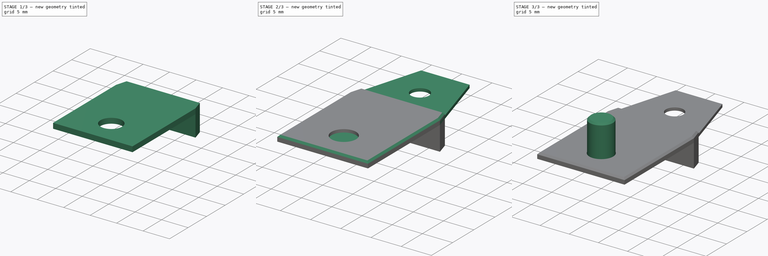
[diagram: build sequence overview — one tinted view per stage of 3, left to right]
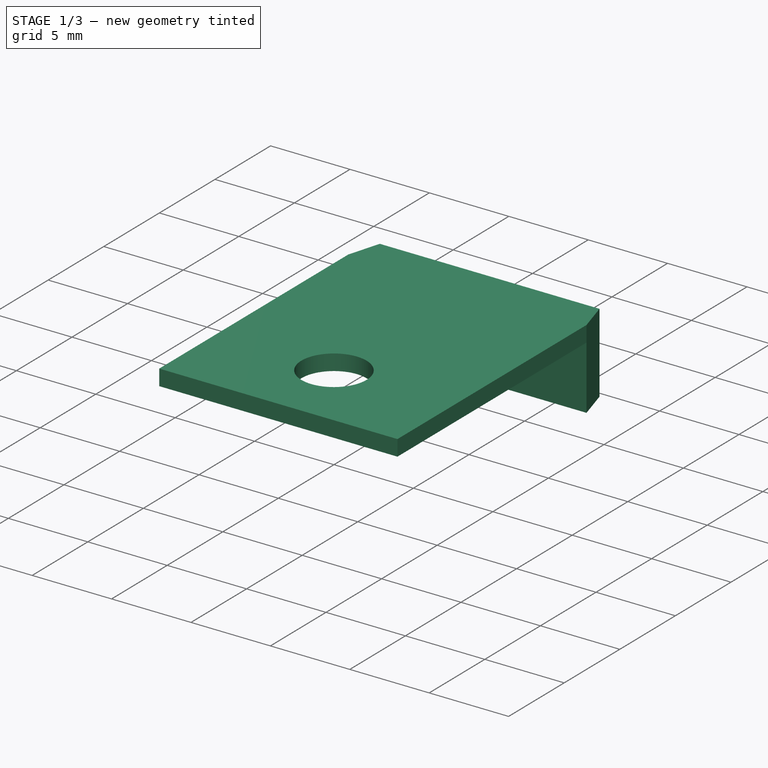
[diagram: stage 1 of 3 — iso view after this stage's code; geometry added in this stage tinted green]
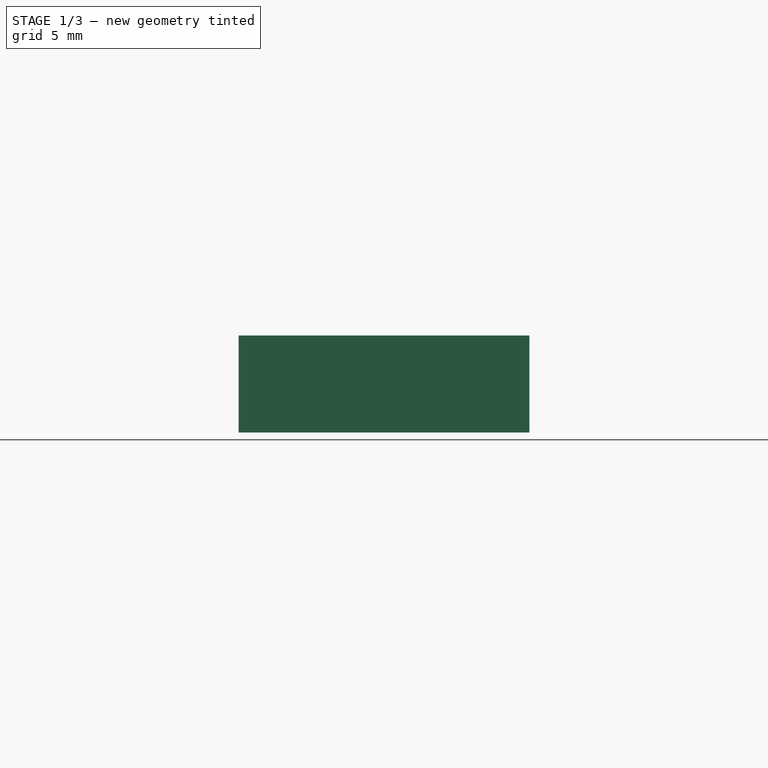
[diagram: stage 1 of 3 — front view after this stage's code; geometry added in this stage tinted green]
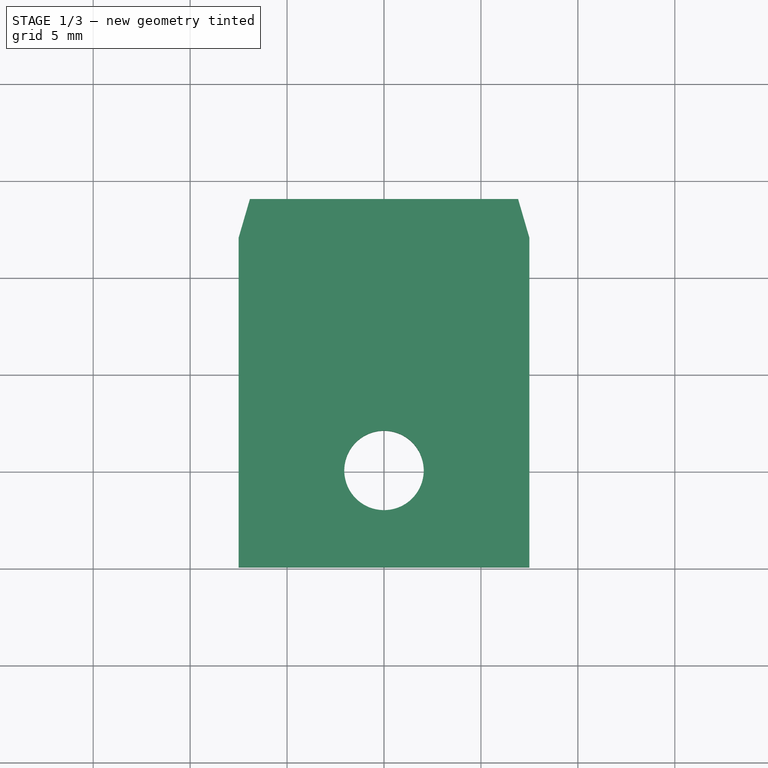
[diagram: stage 1 of 3 — top view after this stage's code; geometry added in this stage tinted green]
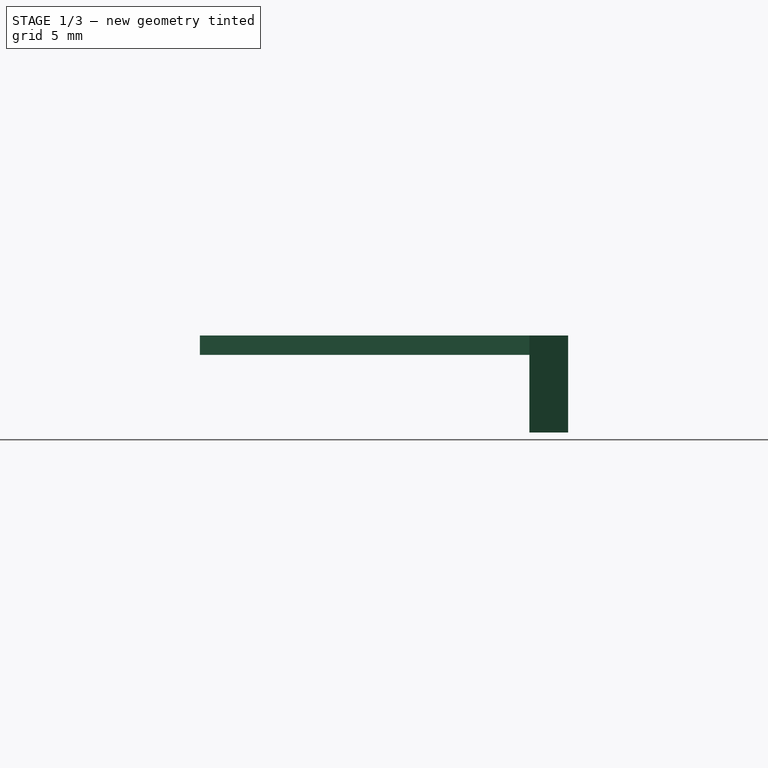
[diagram: stage 1 of 3 — right view after this stage's code; geometry added in this stage tinted green]
FCSTD DOCUMENT  (FreeCAD 0.19R22670 (Git))
Label: picture clip
License: All rights reserved
LicenseURL: http://en.wikipedia.org/wiki/All_rights_reserved
objects: Sketcher::SketchObject×5, PartDesign::Pad×4, PartDesign::Chamfer×3, PartDesign::Body×2
note: 21 computed .brp shape members not serialized (recipe doc carries the construction recipe); baked Part::Feature solids carry a one-line shape summary decoded from their .brp

FEATURE [PartDesign::Body] Body  label="back"
  Group = -> [Sketch001,Pad,Sketch002,Pad001,Chamfer]
  Origin = -> Origin
  Tip = -> Chamfer
FEATURE [PartDesign::Pad] Pad002
  Direction = (1,1,1)
  Length = 1
  Length2 = 100
  Profile = -> Sketch003
  Refine = true
  Type = 0
FEATURE [Sketcher::SketchObject] Sketch004
  ExternalGeometry = -> [Pad002]
  MapMode = 5
  Placement = pos=(0,0,1) rot=(0,0,1;0rad)
  Support = -> [Pad002]
  expr: Constraints[9] = Sketch.Constraints[9]
  expr: Constraints[22] = Sketch.Constraints[22]
  expr: Constraints[10] = Sketch.Constraints[10]
  expr: Constraints[23] = Sketch.Constraints[23]
  expr: Constraints[24] = Sketch.Constraints[24]
  expr: Constraints[25] = Sketch.Constraints[25]
  expr: Constraints[26] = Sketch.Constraints[26]
  sketch-geometry (14):
    g0: LineSegment [constr] StartX=-7.5 StartY=-5 StartZ=0 EndX=7.5 EndY=-5 EndZ=0
    g1: LineSegment [constr] StartX=7.5 StartY=-5 StartZ=0 EndX=7.5 EndY=12 EndZ=0
    g2: LineSegment [constr] StartX=-7.5 StartY=12 StartZ=0 EndX=-7.5 EndY=-5 EndZ=0
    g3: LineSegment [constr] StartX=-7.5 StartY=12 StartZ=0 EndX=-4 EndY=24 EndZ=0
    g4: LineSegment [constr] StartX=-4 StartY=24 StartZ=0 EndX=4 EndY=24 EndZ=0
    g5: LineSegment [constr] StartX=4 StartY=24 StartZ=0 EndX=7.5 EndY=12 EndZ=0
    g6: Circle [constr] CenterX=0 CenterY=0 CenterZ=0 NormalX=0 NormalY=0 NormalZ=1 AngleXU=0 Radius=2
    g7: Circle [constr] CenterX=0 CenterY=18 CenterZ=0 NormalX=0 NormalY=0 NormalZ=1 AngleXU=0 Radius=1.5
    g8: LineSegment [constr] StartX=7.5 StartY=12 StartZ=0 EndX=7.5 EndY=18 EndZ=0
    g9: LineSegment [constr] StartX=7.5 StartY=18 StartZ=0 EndX=7.5 EndY=24 EndZ=0
    g10: LineSegment StartX=-6.91667 StartY=14 StartZ=0 EndX=6.91667 EndY=14 EndZ=0
    g11: LineSegment StartX=6.91667 StartY=14 StartZ=0 EndX=7.5 EndY=12 EndZ=0
    g12: LineSegment StartX=7.5 StartY=12 StartZ=0 EndX=-7.5 EndY=12 EndZ=0
    g13: LineSegment StartX=-7.5 StartY=12 StartZ=0 EndX=-6.91667 EndY=14 EndZ=0
  constraints (37):
    c: Coincident(g0,g1)
    c: Coincident(g2,g0)
    c: Vertical(g2)
    c: Coincident(g3,g2)
    c: Coincident(g4,g3)
    c: Horizontal(g4)
    c: Coincident(g5,g4)
    c: Coincident(g5,g1)
    c: Coincident(g6,g-1)
    c: Diameter(g6) = 4
    c: DistanceX(g0,g0) = 15
    c: Symmetric(g0,g0,g-2)
    c: Equal(g2,g1)
    c: Equal(g3,g5)
    c: PointOnObject(g7,g-2)
    c: Coincident(g8,g1)
    c: Vertical(g8)
    c: Coincident(g9,g8)
    c: Vertical(g9)
    c: Horizontal(g9,g4)
    c: Horizontal(g7,g8)
    c: Equal(g8,g9)
    c: DistanceY(g1,g4) = 12
    c: DistanceX(g4,g4) = 8
    c: Diameter(g7) = 3
    c: DistanceY(g6,g1) = 12
    c: DistanceY(g0,g6) = 5
    c: Vertical(g1)
    c: Coincident(g-3,g10)
    c: Coincident(g10,g-3)
    c: Coincident(g10,g11)
    c: Coincident(g11,g12)
    c: PointOnObject(g12,g3)
    c: Horizontal(g12)
    c: Coincident(g12,g13)
    c: Coincident(g13,g10)
    c: Coincident(g11,g1)
FEATURE [PartDesign::Pad] Pad003
  BaseFeature = -> Pad002
  Direction = (1,1,1)
  Length = 5
  Length2 = 100
  Profile = -> Sketch004
  Refine = true
  Reversed = true
  Type = 0
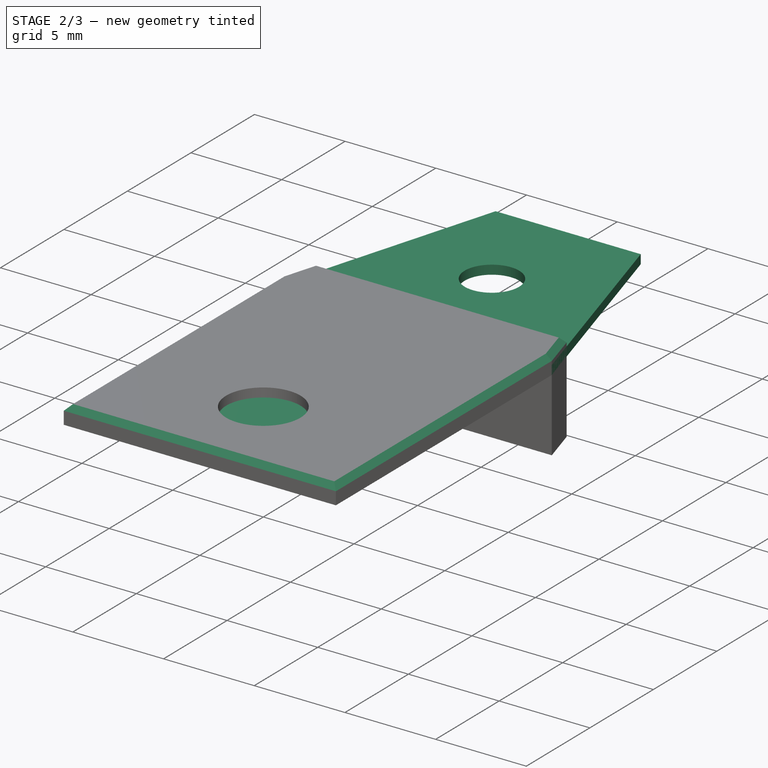
[diagram: stage 2 of 3 — iso view after this stage's code; geometry added in this stage tinted green]
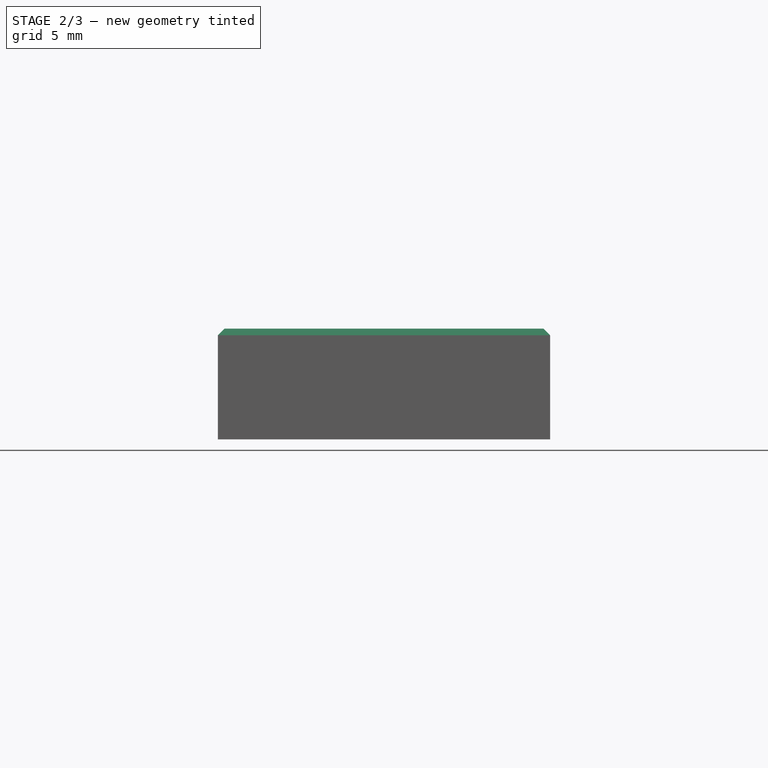
[diagram: stage 2 of 3 — front view after this stage's code; geometry added in this stage tinted green]
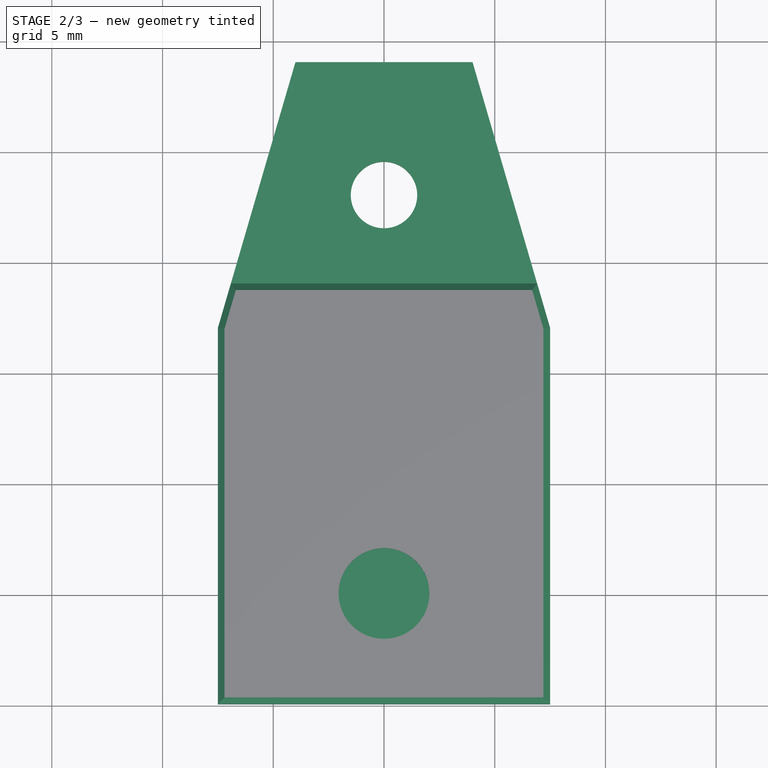
[diagram: stage 2 of 3 — top view after this stage's code; geometry added in this stage tinted green]
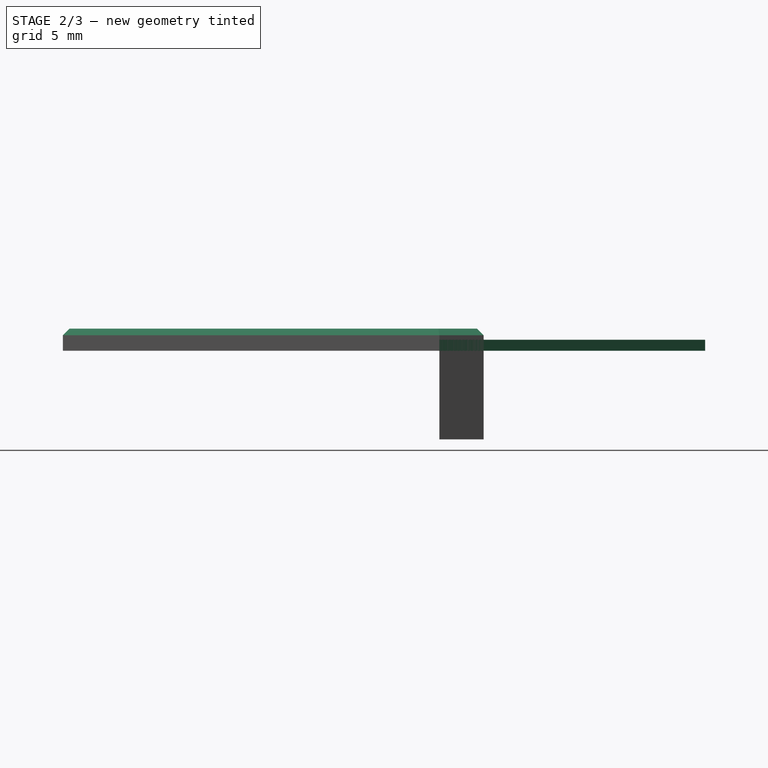
[diagram: stage 2 of 3 — right view after this stage's code; geometry added in this stage tinted green]
FEATURE [Sketcher::SketchObject] Sketch  label="Master"
  MapMode = 5
  Support = -> [XY_Plane]
  sketch-geometry (10):
    g0: LineSegment StartX=-7.5 StartY=-5 StartZ=0 EndX=7.5 EndY=-5 EndZ=0
    g1: LineSegment StartX=7.5 StartY=-5 StartZ=0 EndX=7.5 EndY=12 EndZ=0
    g2: LineSegment StartX=-7.5 StartY=12 StartZ=0 EndX=-7.5 EndY=-5 EndZ=0
    g3: LineSegment StartX=-7.5 StartY=12 StartZ=0 EndX=-4 EndY=24 EndZ=0
    g4: LineSegment StartX=-4 StartY=24 StartZ=0 EndX=4 EndY=24 EndZ=0
    g5: LineSegment StartX=4 StartY=24 StartZ=0 EndX=7.5 EndY=12 EndZ=0
    g6: Circle CenterX=0 CenterY=0 CenterZ=0 NormalX=0 NormalY=0 NormalZ=1 AngleXU=0 Radius=2
    g7: Circle CenterX=0 CenterY=18 CenterZ=0 NormalX=0 NormalY=0 NormalZ=1 AngleXU=0 Radius=1.5
    g8: LineSegment [constr] StartX=7.5 StartY=12 StartZ=0 EndX=7.5 EndY=18 EndZ=0
    g9: LineSegment [constr] StartX=7.5 StartY=18 StartZ=0 EndX=7.5 EndY=24 EndZ=0
  constraints (28):
    c: Coincident(g0,g1)
    c: Coincident(g2,g0)
    c: Vertical(g2)
    c: Coincident(g3,g2)
    c: Coincident(g4,g3)
    c: Horizontal(g4)
    c: Coincident(g5,g4)
    c: Coincident(g5,g1)
    c: Coincident(g6,g-1)
    c: Diameter(g6) = 4
    c: DistanceX(g0,g0) = 15
    c: Symmetric(g0,g0,g-2)
    c: Equal(g2,g1)
    c: Equal(g3,g5)
    c: PointOnObject(g7,g-2)
    c: Coincident(g8,g1)
    c: Vertical(g8)
    c: Coincident(g9,g8)
    c: Vertical(g9)
    c: Horizontal(g9,g4)
    c: Horizontal(g7,g8)
    c: Equal(g8,g9)
    c: DistanceY(g1,g4) = 12
    c: DistanceX(g4,g4) = 8
    c: Diameter(g7) = 3
    c: DistanceY(g6,g1) = 12
    c: DistanceY(g0,g6) = 5
    c: Vertical(g1)
FEATURE [Sketcher::SketchObject] Sketch001
  MapMode = 5
  Support = -> [XY_Plane]
  expr: Constraints[20] = Sketch.Constraints[22]
  expr: Constraints[8] = Sketch.Constraints[10]
  expr: Constraints[21] = Sketch.Constraints[23]
  expr: Constraints[22] = Sketch.Constraints[24]
  sketch-geometry (9):
    g0: LineSegment StartX=-7.5 StartY=-5 StartZ=0 EndX=7.5 EndY=-5 EndZ=0
    g1: LineSegment StartX=7.5 StartY=-5 StartZ=0 EndX=7.5 EndY=12 EndZ=0
    g2: LineSegment StartX=-7.5 StartY=12 StartZ=0 EndX=-7.5 EndY=-5 EndZ=0
    g3: LineSegment StartX=-7.5 StartY=12 StartZ=0 EndX=-4 EndY=24 EndZ=0
    g4: LineSegment StartX=-4 StartY=24 StartZ=0 EndX=4 EndY=24 EndZ=0
    g5: LineSegment StartX=4 StartY=24 StartZ=0 EndX=7.5 EndY=12 EndZ=0
    g6: Circle CenterX=0 CenterY=18 CenterZ=0 NormalX=0 NormalY=0 NormalZ=1 AngleXU=0 Radius=1.5
    g7: LineSegment [constr] StartX=7.5 StartY=12 StartZ=0 EndX=7.5 EndY=18 EndZ=0
    g8: LineSegment [constr] StartX=7.5 StartY=18 StartZ=0 EndX=7.5 EndY=24 EndZ=0
  constraints (24):
    c: Coincident(g0,g1)
    c: Coincident(g2,g0)
    c: Vertical(g2)
    c: Coincident(g3,g2)
    c: Coincident(g4,g3)
    c: Horizontal(g4)
    c: Coincident(g5,g4)
    c: Coincident(g5,g1)
    c: DistanceX(g0,g0) = 15
    c: Symmetric(g0,g0,g-2)
    c: Equal(g2,g1)
    c: Equal(g3,g5)
    c: PointOnObject(g6,g-2)
    c: Coincident(g7,g1)
    c: Vertical(g7)
    c: Coincident(g8,g7)
    c: Vertical(g8)
    c: Horizontal(g8,g4)
    c: Horizontal(g6,g7)
    c: Equal(g7,g8)
    c: DistanceY(g1,g4) = 12
    c: DistanceX(g4,g4) = 8
    c: Diameter(g6) = 3
    c: Vertical(g1)
FEATURE [PartDesign::Pad] Pad
  Direction = (1,1,1)
  Length = 0.5
  Length2 = 100
  Profile = -> Sketch001
  Refine = true
  Type = 0
FEATURE [PartDesign::Chamfer] Chamfer001
  Angle = 45
  Base = -> Pad003 [Edge10]
  BaseFeature = -> Pad003
  ChamferType = 0
  FlipDirection = false
  Refine = true
  Size = 0.3
  Size2 = 1
  SupportTransform = false
FEATURE [PartDesign::Chamfer] Chamfer002
  Angle = 45
  Base = -> Chamfer001 [Edge13,Edge15,Edge17,Edge22,Edge27,Edge26]
  BaseFeature = -> Chamfer001
  ChamferType = 0
  FlipDirection = false
  Refine = true
  Size = 0.3
  Size2 = 1
  SupportTransform = false
FEATURE [PartDesign::Body] Body001  label="front"
  Group = -> [Sketch003,Pad002,Sketch004,Pad003,Chamfer001,Chamfer002]
  Origin = -> Origin001
  Placement = pos=(0,0,4.5) rot=(0,0,1;0rad)
  Tip = -> Chamfer002
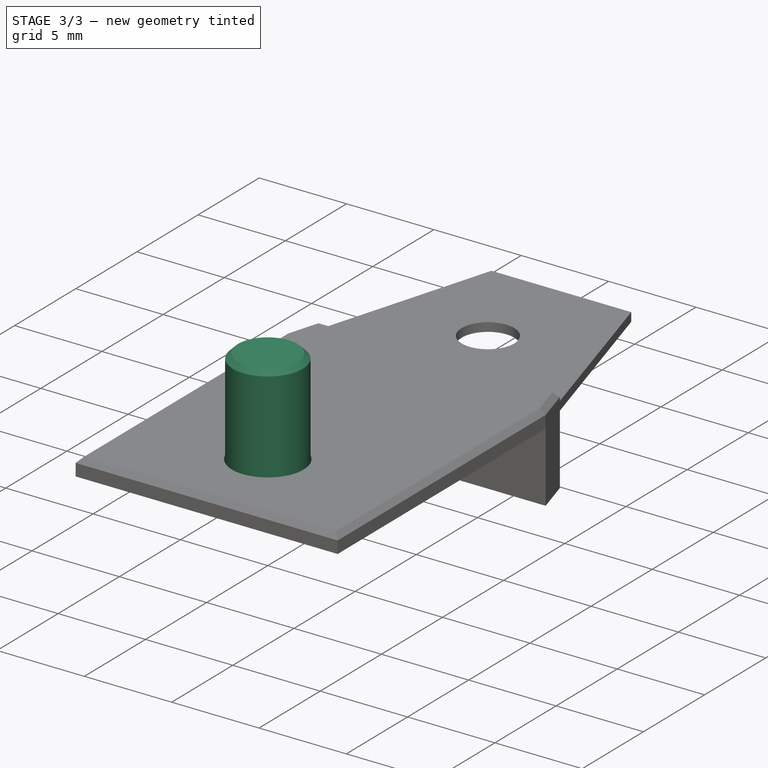
[diagram: stage 3 of 3 — iso view after this stage's code; geometry added in this stage tinted green]
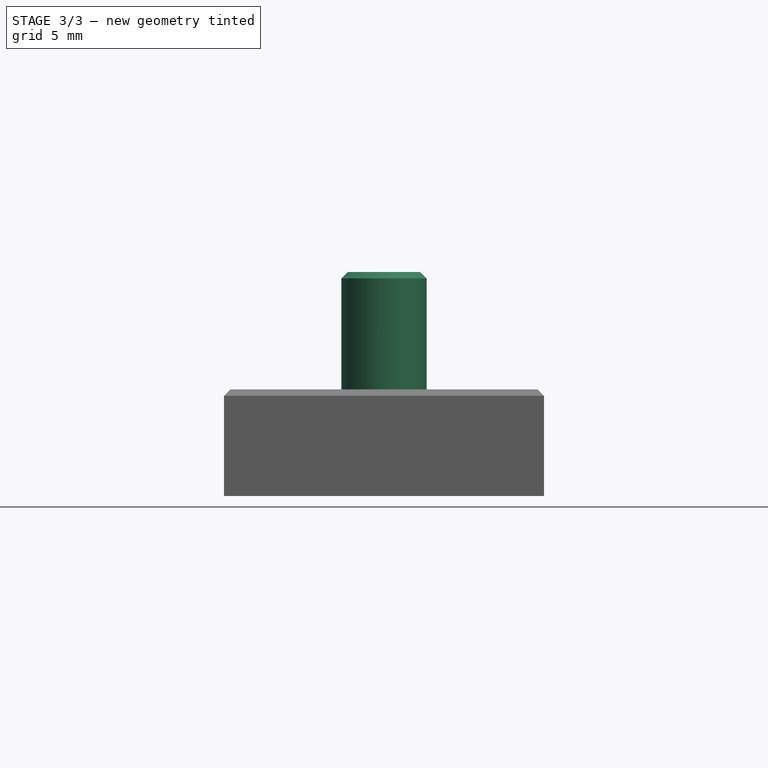
[diagram: stage 3 of 3 — front view after this stage's code; geometry added in this stage tinted green]
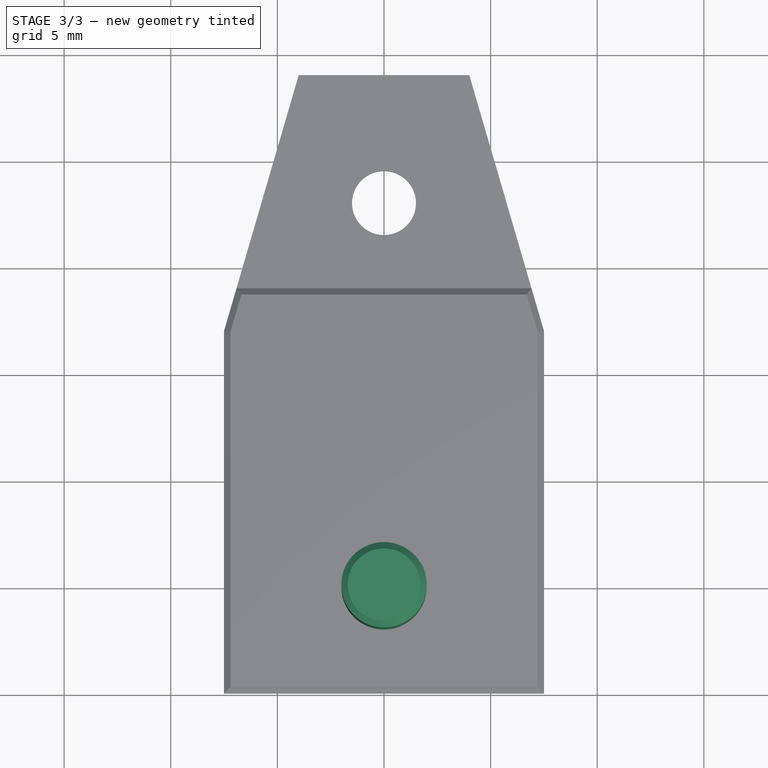
[diagram: stage 3 of 3 — top view after this stage's code; geometry added in this stage tinted green]
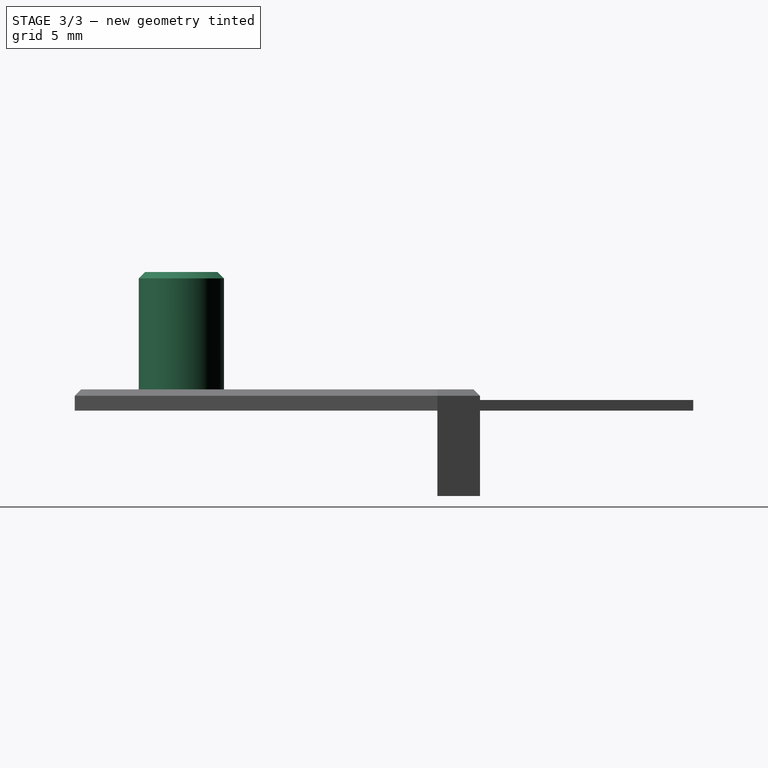
[diagram: stage 3 of 3 — right view after this stage's code; geometry added in this stage tinted green]
FEATURE [Sketcher::SketchObject] Sketch002
  MapMode = 5
  Placement = pos=(0,0,0.5) rot=(0,0,1;0rad)
  Support = -> [Pad]
  expr: Constraints[9] = Sketch.Constraints[9]
  expr: Constraints[22] = Sketch.Constraints[22]
  expr: Constraints[10] = Sketch.Constraints[10]
  expr: Constraints[23] = Sketch.Constraints[23]
  expr: Constraints[24] = Sketch.Constraints[24]
  expr: Constraints[25] = Sketch.Constraints[25]
  expr: Constraints[26] = Sketch.Constraints[26]
  sketch-geometry (10):
    g0: LineSegment [constr] StartX=-7.5 StartY=-5 StartZ=0 EndX=7.5 EndY=-5 EndZ=0
    g1: LineSegment [constr] StartX=7.5 StartY=-5 StartZ=0 EndX=7.5 EndY=12 EndZ=0
    g2: LineSegment [constr] StartX=-7.5 StartY=12 StartZ=0 EndX=-7.5 EndY=-5 EndZ=0
    g3: LineSegment [constr] StartX=-7.5 StartY=12 StartZ=0 EndX=-4 EndY=24 EndZ=0
    g4: LineSegment [constr] StartX=-4 StartY=24 StartZ=0 EndX=4 EndY=24 EndZ=0
    g5: LineSegment [constr] StartX=4 StartY=24 StartZ=0 EndX=7.5 EndY=12 EndZ=0
    g6: Circle CenterX=0 CenterY=0 CenterZ=0 NormalX=0 NormalY=0 NormalZ=1 AngleXU=0 Radius=2
    g7: Circle [constr] CenterX=0 CenterY=18 CenterZ=0 NormalX=0 NormalY=0 NormalZ=1 AngleXU=0 Radius=1.5
    g8: LineSegment [constr] StartX=7.5 StartY=12 StartZ=0 EndX=7.5 EndY=18 EndZ=0
    g9: LineSegment [constr] StartX=7.5 StartY=18 StartZ=0 EndX=7.5 EndY=24 EndZ=0
  constraints (28):
    c: Coincident(g0,g1)
    c: Coincident(g2,g0)
    c: Vertical(g2)
    c: Coincident(g3,g2)
    c: Coincident(g4,g3)
    c: Horizontal(g4)
    c: Coincident(g5,g4)
    c: Coincident(g5,g1)
    c: Coincident(g6,g-1)
    c: Diameter(g6) = 4
    c: DistanceX(g0,g0) = 15
    c: Symmetric(g0,g0,g-2)
    c: Equal(g2,g1)
    c: Equal(g3,g5)
    c: PointOnObject(g7,g-2)
    c: Coincident(g8,g1)
    c: Vertical(g8)
    c: Coincident(g9,g8)
    c: Vertical(g9)
    c: Horizontal(g9,g4)
    c: Horizontal(g7,g8)
    c: Equal(g8,g9)
    c: DistanceY(g1,g4) = 12
    c: DistanceX(g4,g4) = 8
    c: Diameter(g7) = 3
    c: DistanceY(g6,g1) = 12
    c: DistanceY(g0,g6) = 5
    c: Vertical(g1)
FEATURE [PartDesign::Pad] Pad001
  BaseFeature = -> Pad
  Direction = (1,1,1)
  Length = 6
  Length2 = 100
  Profile = -> Sketch002
  Refine = true
  Type = 0
FEATURE [Sketcher::SketchObject] Sketch003
  MapMode = 5
  Support = -> [XY_Plane001]
  expr: Constraints[9] = Sketch.Constraints[9]
  expr: Constraints[22] = Sketch.Constraints[22]
  expr: Constraints[10] = Sketch.Constraints[10]
  expr: Constraints[23] = Sketch.Constraints[23]
  expr: Constraints[24] = Sketch.Constraints[24]
  expr: Constraints[25] = Sketch.Constraints[25]
  expr: Constraints[26] = Sketch.Constraints[26]
  sketch-geometry (19):
    g0: LineSegment [constr] StartX=-7.5 StartY=-5 StartZ=0 EndX=7.5 EndY=-5 EndZ=0
    g1: LineSegment [constr] StartX=7.5 StartY=-5 StartZ=0 EndX=7.5 EndY=12 EndZ=0
    g2: LineSegment [constr] StartX=-7.5 StartY=12 StartZ=0 EndX=-7.5 EndY=-5 EndZ=0
    g3: LineSegment [constr] StartX=-7.5 StartY=12 StartZ=0 EndX=-4 EndY=24 EndZ=0
    g4: LineSegment [constr] StartX=-4 StartY=24 StartZ=0 EndX=4 EndY=24 EndZ=0
    g5: LineSegment [constr] StartX=4 StartY=24 StartZ=0 EndX=7.5 EndY=12 EndZ=0
    g6: Circle [constr] CenterX=0 CenterY=0 CenterZ=0 NormalX=0 NormalY=0 NormalZ=1 AngleXU=0 Radius=2
    g7: Circle [constr] CenterX=0 CenterY=18 CenterZ=0 NormalX=0 NormalY=0 NormalZ=1 AngleXU=0 Radius=1.5
    g8: LineSegment [constr] StartX=7.5 StartY=12 StartZ=0 EndX=7.5 EndY=18 EndZ=0
    g9: LineSegment [constr] StartX=7.5 StartY=18 StartZ=0 EndX=7.5 EndY=24 EndZ=0
    g10: Circle CenterX=0 CenterY=0 CenterZ=0 NormalX=0 NormalY=0 NormalZ=1 AngleXU=0 Radius=2.05
    g11: LineSegment [constr] StartX=2 StartY=0 StartZ=0 EndX=2.05 EndY=0 EndZ=0
    g12: LineSegment [constr] StartX=2.05 StartY=0 StartZ=0 EndX=4.05 EndY=0 EndZ=0
    g13: LineSegment StartX=-7.5 StartY=12 StartZ=0 EndX=-7.5 EndY=-5 EndZ=0
    g14: LineSegment StartX=-7.5 StartY=-5 StartZ=0 EndX=7.5 EndY=-5 EndZ=0
    g15: LineSegment StartX=7.5 StartY=-5 StartZ=0 EndX=7.5 EndY=12 EndZ=0
    g16: LineSegment StartX=7.5 StartY=12 StartZ=0 EndX=6.91667 EndY=14 EndZ=0
    g17: LineSegment StartX=6.91667 StartY=14 StartZ=0 EndX=-6.91667 EndY=14 EndZ=0
    g18: LineSegment StartX=-6.91667 StartY=14 StartZ=0 EndX=-7.5 EndY=12 EndZ=0
  constraints (52):
    c: Coincident(g0,g1)
    c: Coincident(g2,g0)
    c: Vertical(g2)
    c: Coincident(g3,g2)
    c: Coincident(g4,g3)
    c: Horizontal(g4)
    c: Coincident(g5,g4)
    c: Coincident(g5,g1)
    c: Coincident(g6,g-1)
    c: Diameter(g6) = 4
    c: DistanceX(g0,g0) = 15
    c: Symmetric(g0,g0,g-2)
    c: Equal(g2,g1)
    c: Equal(g3,g5)
    c: PointOnObject(g7,g-2)
    c: Coincident(g8,g1)
    c: Vertical(g8)
    c: Coincident(g9,g8)
    c: Vertical(g9)
    c: Horizontal(g9,g4)
    c: Horizontal(g7,g8)
    c: Equal(g8,g9)
    c: DistanceY(g1,g4) = 12
    c: DistanceX(g4,g4) = 8
    c: Diameter(g7) = 3
    c: DistanceY(g6,g1) = 12
    c: DistanceY(g0,g6) = 5
    c: Vertical(g1)
    c: Coincident(g10,g-1)
    c: PointOnObject(g11,g6)
    c: PointOnObject(g11,g10)
    c: PointOnObject(g11,g-1)
    c: Horizontal(g11)
    c: DistanceX(g11,g11) = 0.05
    c: PointOnObject(g12,g10)
    c: PointOnObject(g12,g-1)
    c: Horizontal(g12)
    c: DistanceX(g12,g12) = 2
    c: Coincident(g2,g13)
    c: Coincident(g13,g0)
    c: Coincident(g13,g14)
    c: Coincident(g14,g0)
    c: Coincident(g14,g15)
    c: Coincident(g15,g1)
    c: Coincident(g15,g16)
    c: PointOnObject(g16,g5)
    c: Coincident(g16,g17)
    c: PointOnObject(g17,g3)
    c: Horizontal(g17)
    c: Coincident(g17,g18)
    c: Coincident(g18,g13)
    c: DistanceY(g15,g16) = 2
FEATURE [PartDesign::Chamfer] Chamfer
  Angle = 45
  Base = -> Pad001 [Edge24]
  BaseFeature = -> Pad001
  ChamferType = 0
  FlipDirection = false
  Refine = true
  Size = 0.3
  Size2 = 1
  SupportTransform = false
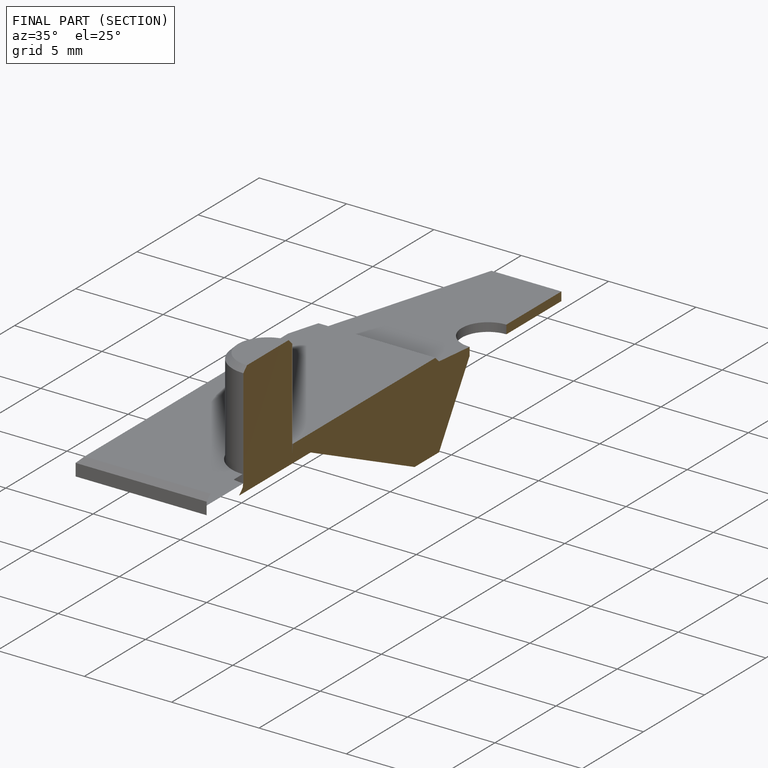
[diagram: finished part — half-section view (interior)]
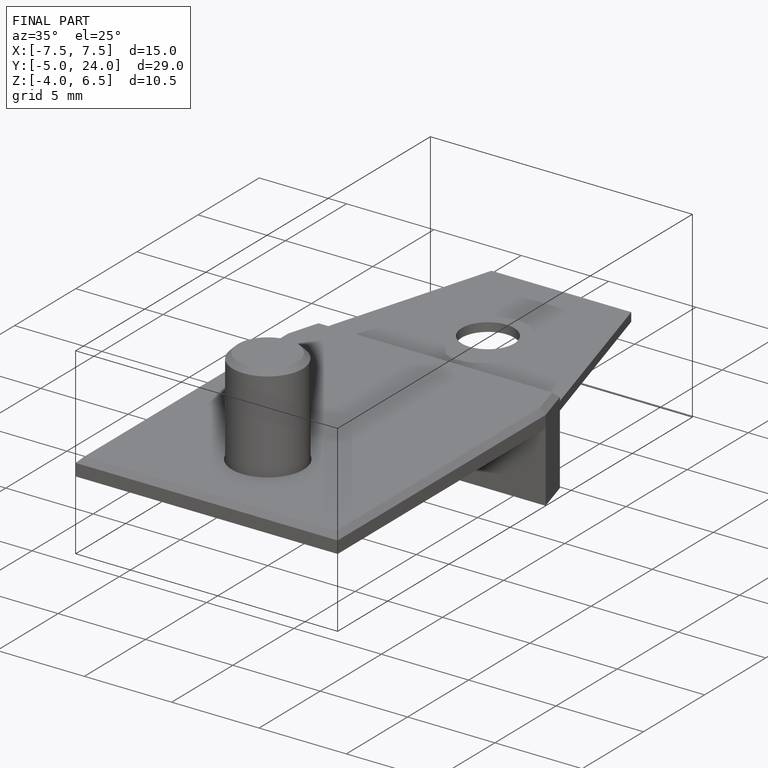
[diagram: finished part — iso view with bounding-box wireframe]
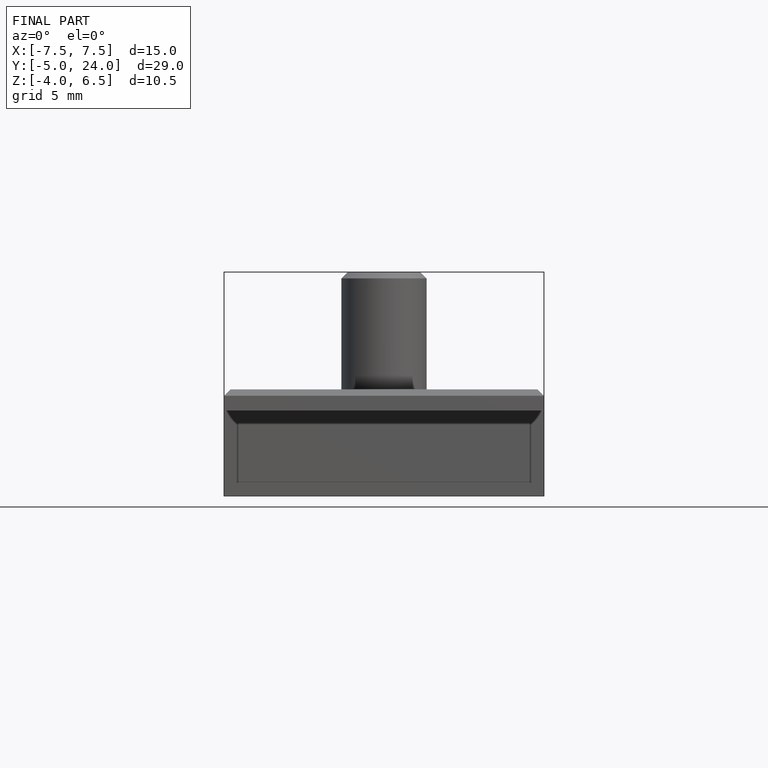
[diagram: finished part — front view with bounding-box wireframe]
